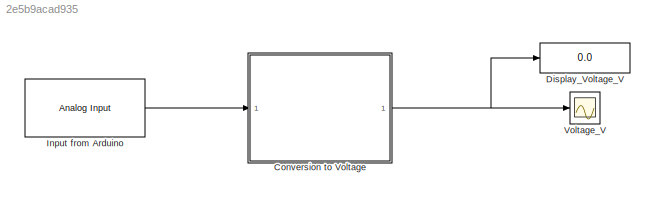
MODEL slx_2e5b9acad935
KIND model
CONFIG AbsTol = auto
CONFIG EnableMultiTasking = on
CONFIG FixedStep = 0.01
CONFIG MaxStep = auto
CONFIG MinStep = auto
CONFIG RelTol = 1e-3
CONFIG SampleTimeConstraint = Unconstrained
CONFIG SolverName = FixedStepAuto
CONFIG StartTime = 0.0
CONFIG StopTime = inf
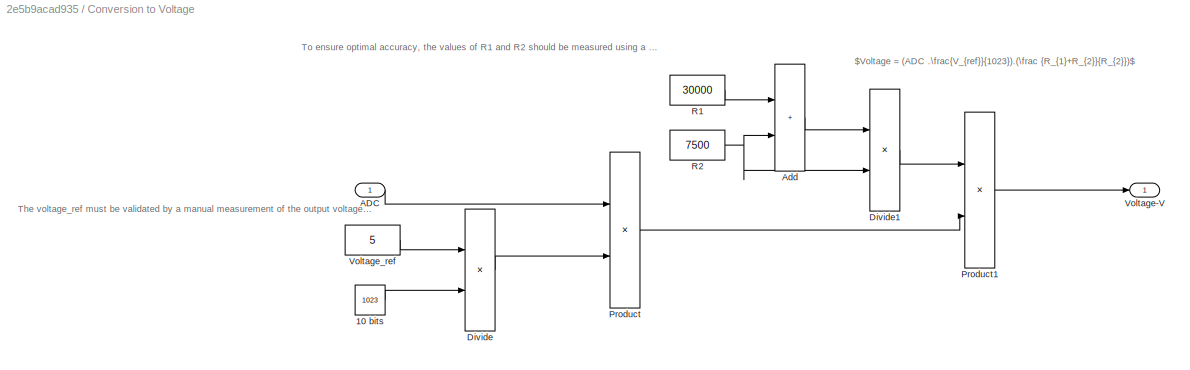
BLOCK [SubSystem] Conversion to Voltage
  Ports = [1, 1]
  RequestExecContextInheritance = off
BLOCK [Constant] Conversion to Voltage/10 bits
  Value = 1023
BLOCK [Inport] Conversion to Voltage/ADC
BLOCK [Sum] Conversion to Voltage/Add
  IconShape = rectangular
  Ports = [2, 1]
BLOCK [Product] Conversion to Voltage/Divide
  Inputs = */
  Ports = [2, 1]
BLOCK [Product] Conversion to Voltage/Divide1
  Inputs = */
  Ports = [2, 1]
BLOCK [Product] Conversion to Voltage/Product
  Ports = [2, 1]
BLOCK [Product] Conversion to Voltage/Product1
  Ports = [2, 1]
BLOCK [Constant] Conversion to Voltage/R1
  Value = 30000
BLOCK [Constant] Conversion to Voltage/R2
  Value = 7500
BLOCK [Outport] Conversion to Voltage/Voltage-V
BLOCK [Constant] Conversion to Voltage/Voltage_ref
  Value = 5
BLOCK [Display] Display_Voltage_V
  Decimation = 1
  Ports = [1]
BLOCK [Reference] Input from Arduino  REF=arduinolib/Analog Input
  Ports = [0, 1]
  SourceBlock = arduinolib/Analog Input
  SourceProductBaseCode = ARDUINO
  SourceType = Arduino Analog Input
BLOCK [Scope] Voltage_V
  Floating = off
  NumInputPorts = 1
  Ports = [1]
  ScopeSpecificationString = Simulink.scopes.TimeScopeBlockCfg('CurrentConfiguration', extmgr.ConfigurationSet(extmgr.Configuration('Core','General UI',true,'FigureColor',[0.941176470588235 0.941176470588235 0.941176470588235]),extmgr.Configuration('Core','Source UI',true),extmgr.Configuration('Sources','WiredSimulink',true),extmgr.Configuration('Visuals','Time Domain',true,'SerializedDisplays',{struct('MinYLimReal','-0.125',...<+1480ch>
ANNOTATION Conversion to Voltage: To ensure optimal accuracy, the values of R1 and R2 should be measured using a multimeter.
ANNOTATION Conversion to Voltage: The voltage_ref must be validated by a manual measurement of the output voltage of your VCC pin Arduino. For better precision, the exacte value of the VCC output voltage should be used.
ANNOTATION Conversion to Voltage: $Voltage = (ADC .\frac{V_{ref}}{1023}).(\frac {R_{1}+R_{2}}{R_{2}})$
LINE Conversion to Voltage/10 bits:1 -> Conversion to Voltage/Divide:2
LINE Conversion to Voltage/ADC:1 -> Conversion to Voltage/Product:1
LINE Conversion to Voltage/Add:1 -> Conversion to Voltage/Divide1:1
LINE Conversion to Voltage/Divide1:1 -> Conversion to Voltage/Product1:1
LINE Conversion to Voltage/Divide:1 -> Conversion to Voltage/Product:2
LINE Conversion to Voltage/Product1:1 -> Conversion to Voltage/Voltage-V:1
LINE Conversion to Voltage/Product:1 -> Conversion to Voltage/Product1:2
LINE Conversion to Voltage/R1:1 -> Conversion to Voltage/Add:1
NET Conversion to Voltage/R2:1 -> Conversion to Voltage/Add:2, Conversion to Voltage/Divide1:2
LINE Conversion to Voltage/Voltage_ref:1 -> Conversion to Voltage/Divide:1
NET Conversion to Voltage:1 -> Display_Voltage_V:1, Voltage_V:1
LINE Input from Arduino:1 -> Conversion to Voltage:1
note: NET lines group one-source signal fan-out (src -> all destinations, sorted); 1:1 wires keep LINE
